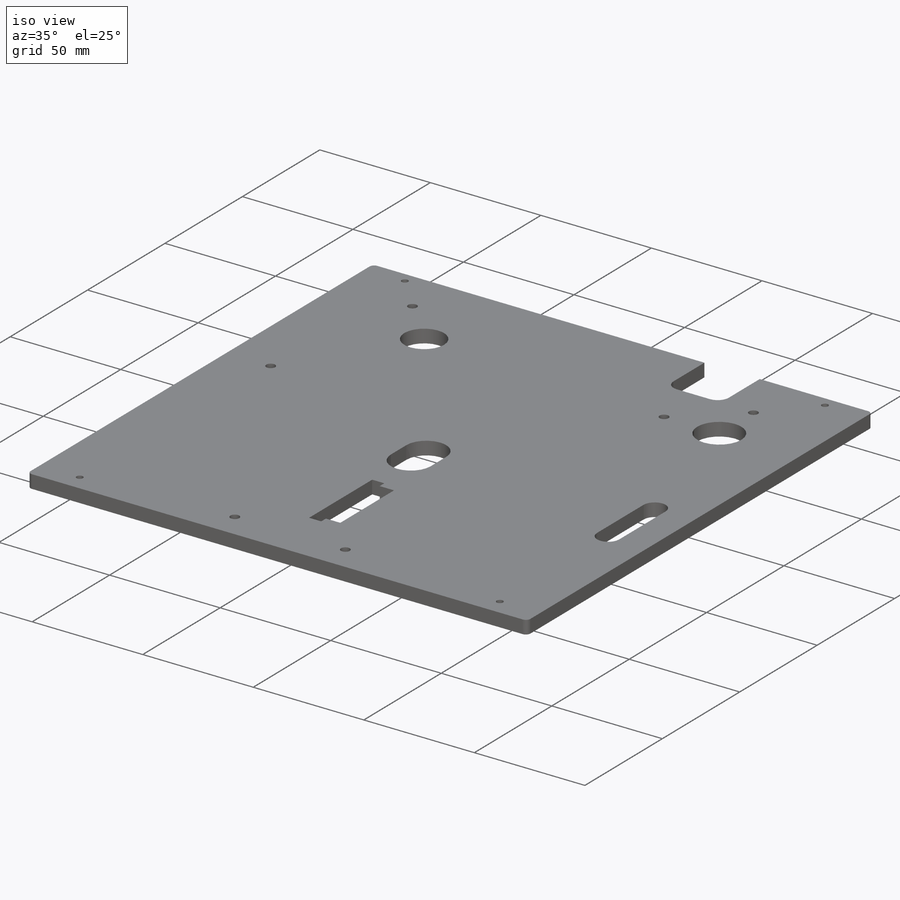
[diagram: iso view]
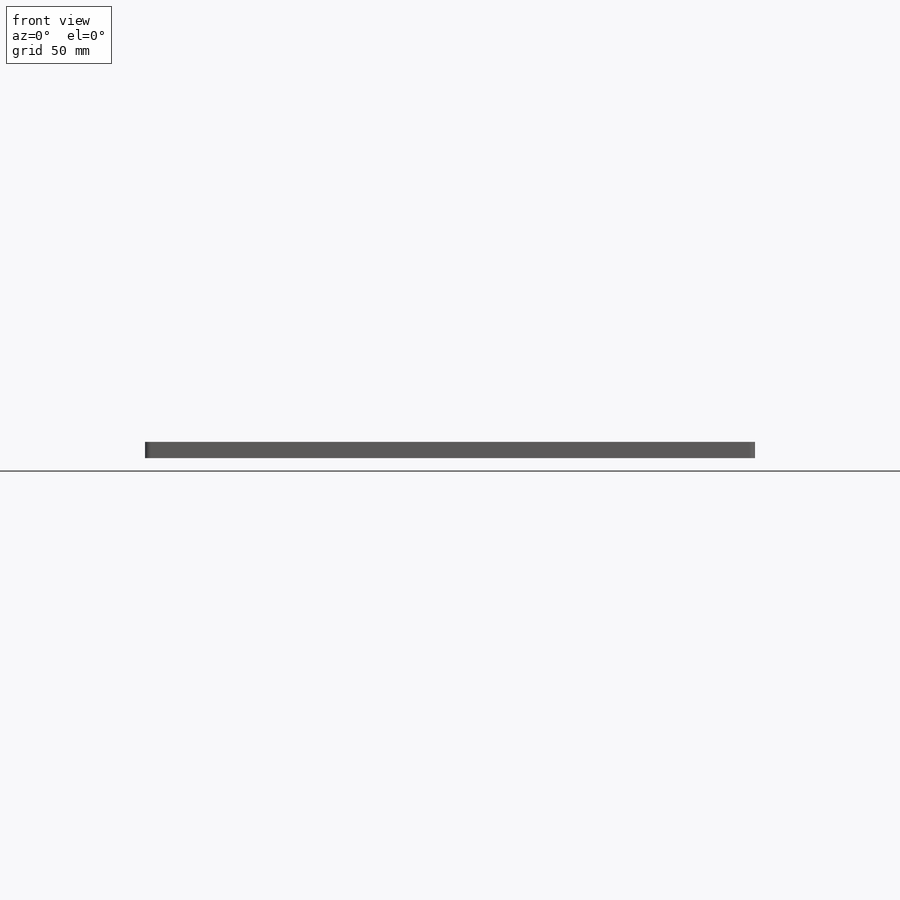
[diagram: front view]
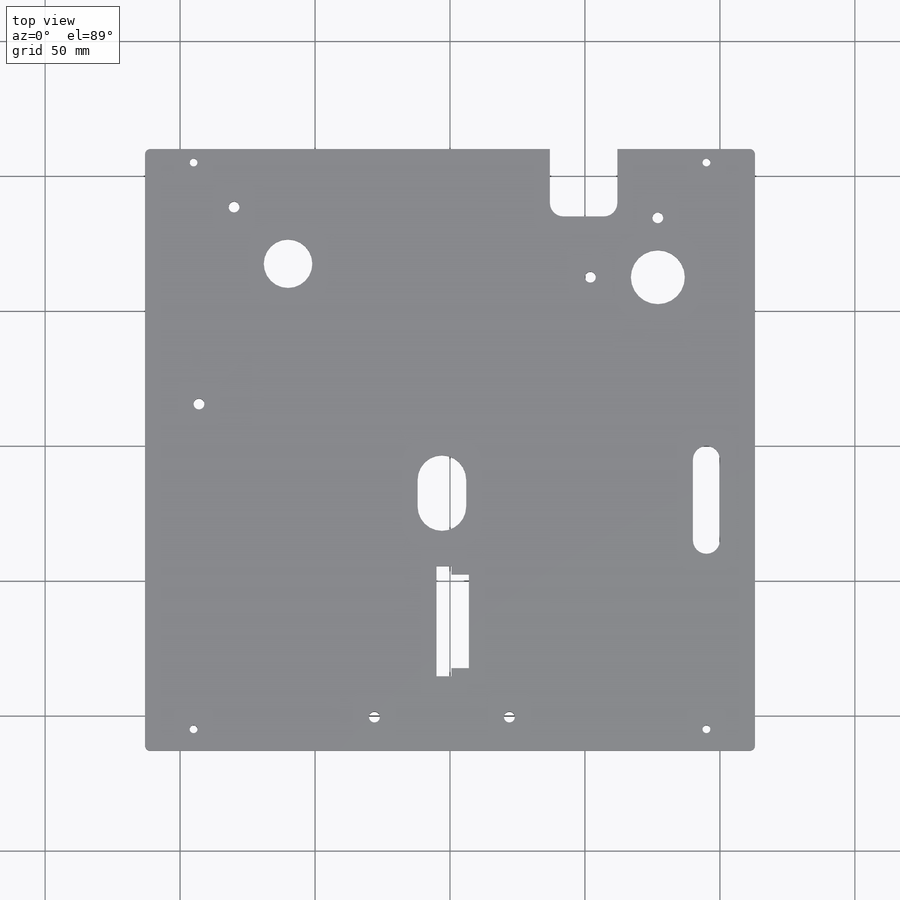
[diagram: top view]
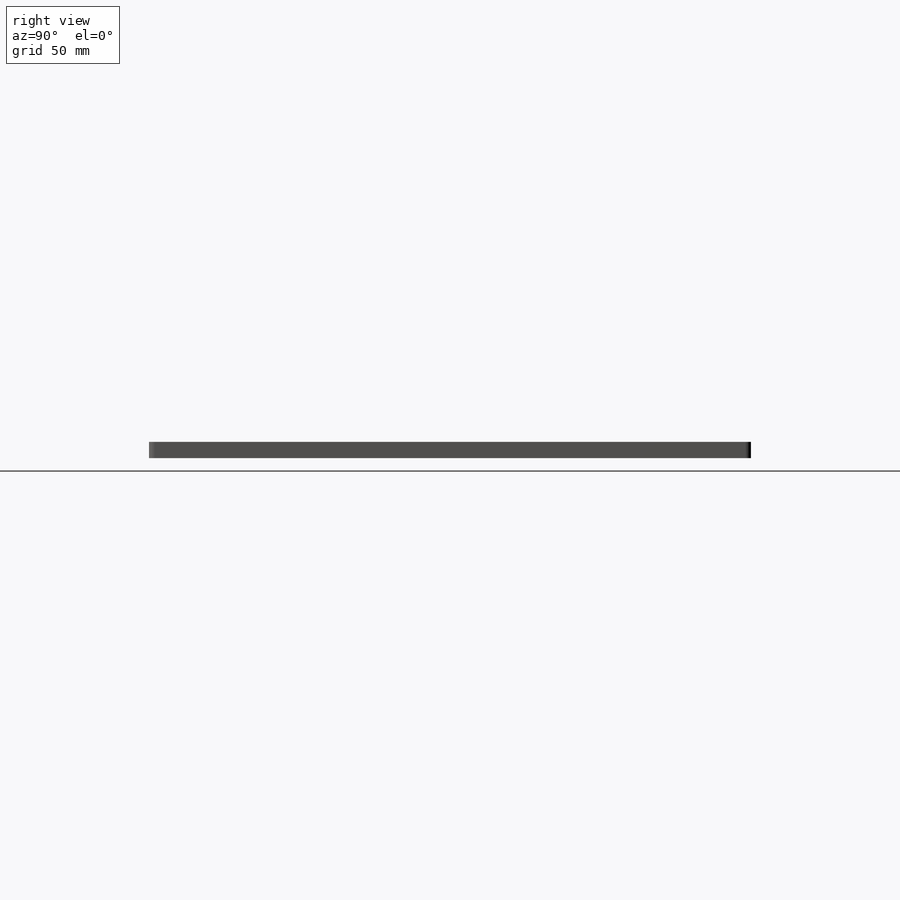
[diagram: right view]
SOLIDWORKS PART (.sldprt)
format: sldprt  version: not decoded by parser v0  size: 262,144 bytes
history: native  units: mm
features: sketch x2, fillet x2, material x1, extrude x1, cut_extrude x1 (+16 scaffold rows collapsed)
feature tree (23):
  scaffold x16  (default folders/planes/origin — collapsed)
  material  "Material <not specified>"
  sketch  "Sketch1"  dims[c1.D10=~11.111407mm c1.D19=2.9mm c1.D1=220.0mm c1.D2=3.0mm c1.D3=65.0mm c1.D4=2.0mm c1.D5=40.75mm c1.D6=10.0mm c1.D7=3.5mm c1.D8=3.0mm c1.D9=18.0mm c2.D10=10.0mm c2.D11=52.5mm c2.D2=3.0mm c2.D12=110.0mm c2.D13=113.0mm c2.D14=113.0mm c2.D15=113.0mm c2.D16=95.0mm c2.D17=105.0mm c2.D18=105.0mm c2.D20=95.0mm]
  extrude  "Boss-Extrude1"  Depth=6mm
  sketch  "Sketch2"  dims[c1.D1=4.0mm c1.D14=18.0mm c1.D15=20.0mm c1.D2=50.0mm c1.D3=88.0mm c1.D4=75.0mm c1.D5=77.0mm c1.D6=90.0mm c1.D7=80.0mm c2.D4=101.0mm c2.D6=97.0mm c2.D8=55.0mm c2.D9=75.0mm c2.D10=28.0mm c2.D11=90.0mm c2.D12=57.0mm c2.D13=80.0mm c2.D7=80.0mm c2.D5=77.0mm c2.D16=10.0mm c2.D17=30.0mm c2.D18=95.0mm c2.D19=20.0mm c2.D20=85.0mm c2.D21=65.0mm c2.D22=40.0mm]
  cut_extrude  "Cut-Extrude1"  [1 undecoded]
  fillet  "Fillet1"  Radius=5mm
  fillet  "Fillet2"  Radius=2mm
decode coverage: 5 of 6 modeling features carry decoded parameters
note: ~ marks probable driven/reference dimensions
note: 1 parameter value undecoded
note: suppression state not decoded; provenance and decode notes live in map.json
